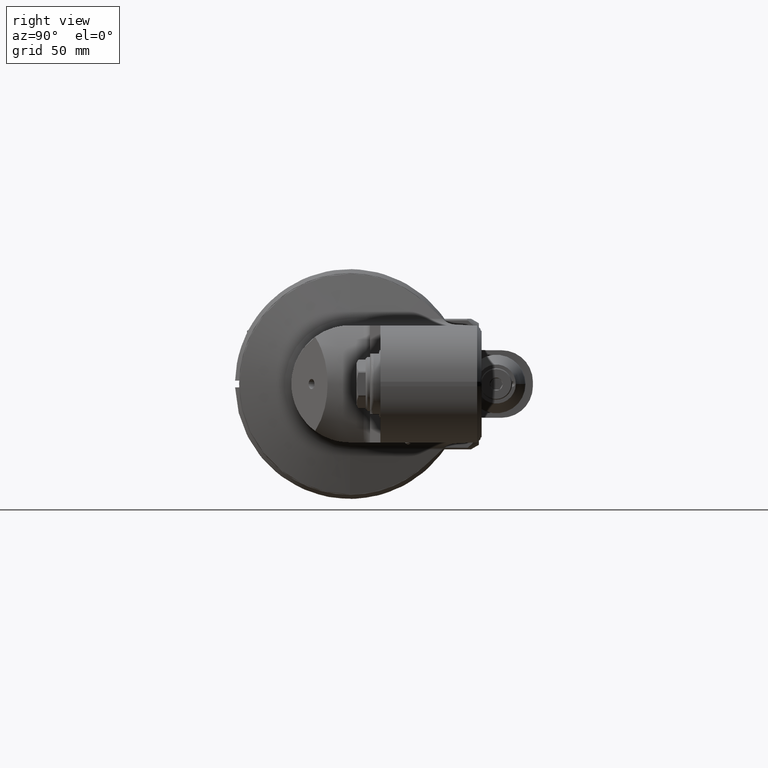
[diagram: clean part render]
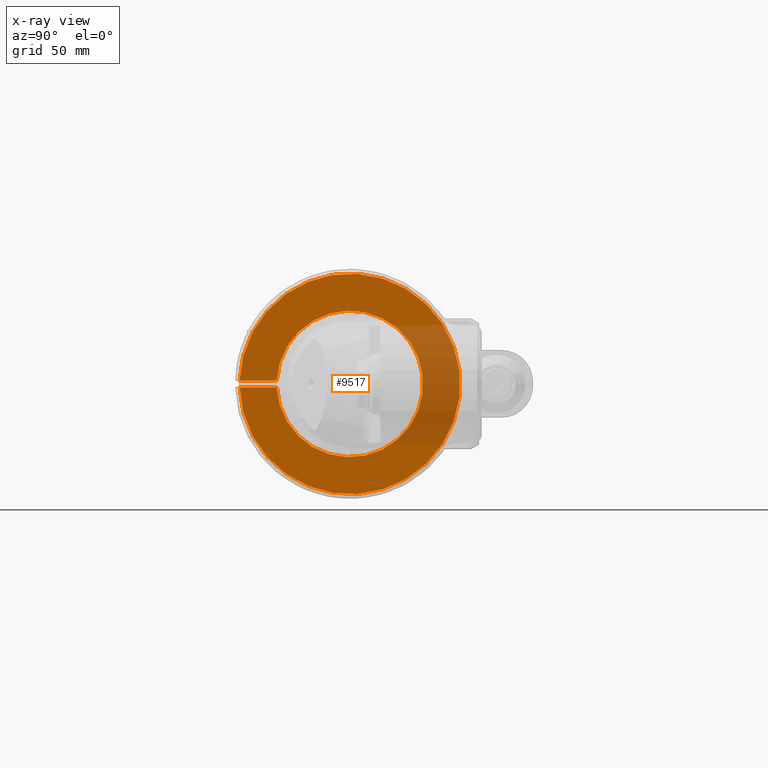
[diagram: x-ray — body ghosted, one internal face saturated and labeled with its STEP entity id]
A machine part, right view, then the same camera in x-ray: the body is ghosted and one INTERNAL B-rep face — a face not visible from any outside direction — is saturated and labeled: STEP entity #9517.
In plain terms, the highlighted planar face has unit normal (1, 0, -0).
Its self-contained STEP definition (entity closure, byte-faithful):
#713=CIRCLE('',#10557,49.);
#716=CIRCLE('',#10562,32.5);
#1048=PLANE('',#10561);
#1463=FACE_OUTER_BOUND('',#2103,.T.);
#2103=EDGE_LOOP('',(#7305,#7306,#7307,#7308));
#2850=LINE('',#15543,#3489);
#2855=LINE('',#15577,#3494);
#3489=VECTOR('',#12480,16.51166927349);
#3494=VECTOR('',#12491,16.51166927349);
#4253=VERTEX_POINT('',#15532);
#4254=VERTEX_POINT('',#15536);
#4255=VERTEX_POINT('',#15542);
#4263=VERTEX_POINT('',#15576);
#5344=EDGE_CURVE('',#4254,#4253,#713,.T.);
#5346=EDGE_CURVE('',#4255,#4254,#2850,.T.);
#5355=EDGE_CURVE('',#4253,#4263,#2855,.T.);
#5356=EDGE_CURVE('',#4263,#4255,#716,.T.);
#7305=ORIENTED_EDGE('',*,*,#5344,.T.);
#7306=ORIENTED_EDGE('',*,*,#5355,.T.);
#7307=ORIENTED_EDGE('',*,*,#5356,.T.);
#7308=ORIENTED_EDGE('',*,*,#5346,.T.);
#9517=ADVANCED_FACE('',(#1463),#1048,.T.);
#10557=AXIS2_PLACEMENT_3D('',#15537,#12476,#12477);
#10561=AXIS2_PLACEMENT_3D('',#15575,#12489,#12490);
#10562=AXIS2_PLACEMENT_3D('',#15578,#12492,#12493);
#12476=DIRECTION('center_axis',(1.,0.,0.));
#12477=DIRECTION('ref_axis',(0.,1.,0.));
#12480=DIRECTION('',(0.,-1.,0.));
#12489=DIRECTION('center_axis',(1.,0.,0.));
#12490=DIRECTION('ref_axis',(0.,-1.,0.));
#12491=DIRECTION('',(0.,1.,0.));
#12492=DIRECTION('center_axis',(-1.,0.,0.));
#12493=DIRECTION('ref_axis',(0.,-0.998934343430642,0.0461538461538519));
#15532=CARTESIAN_POINT('',(-12.,-48.97703543499,1.5));
#15536=CARTESIAN_POINT('',(-12.,-48.97703543499,-1.5));
#15537=CARTESIAN_POINT('Origin',(-12.,0.,0.));
#15542=CARTESIAN_POINT('',(-12.,-32.4653661615,-1.5));
#15543=CARTESIAN_POINT('',(-12.,-32.4653661615,-1.5));
#15575=CARTESIAN_POINT('Origin',(-12.,-49.13074005203,0.));
#15576=CARTESIAN_POINT('',(-12.,-32.4653661615,1.5));
#15577=CARTESIAN_POINT('',(-12.,-48.97703543499,1.5));
#15578=CARTESIAN_POINT('Origin',(-12.,0.,0.));